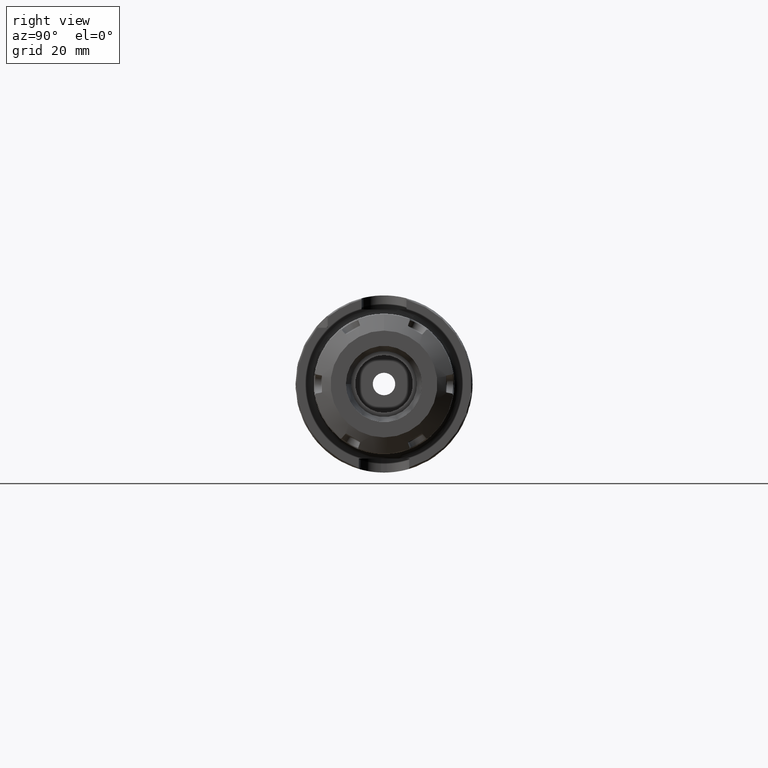
[diagram: clean part render]
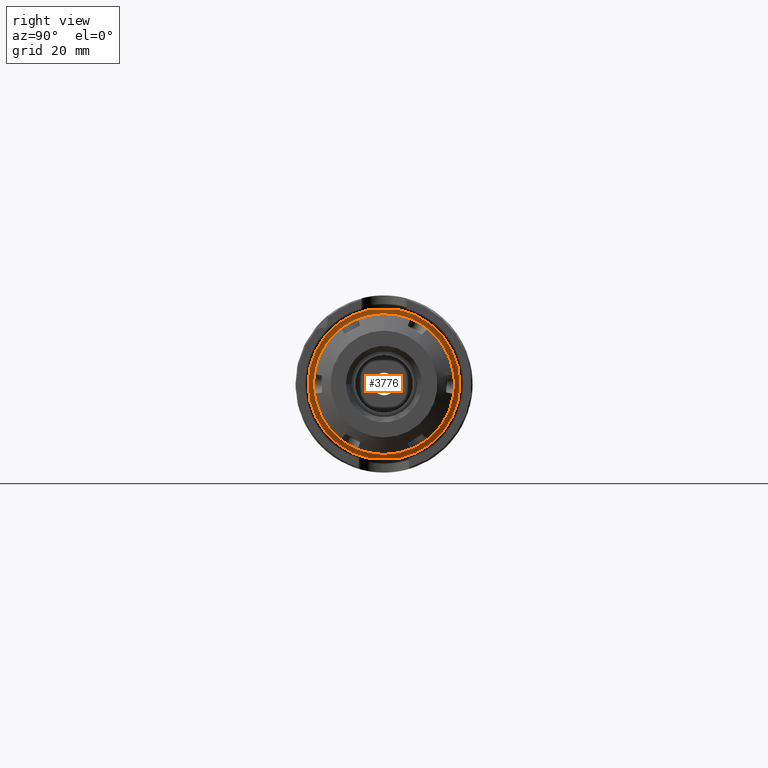
[diagram: same view with one face highlighted and labeled with its STEP entity id]
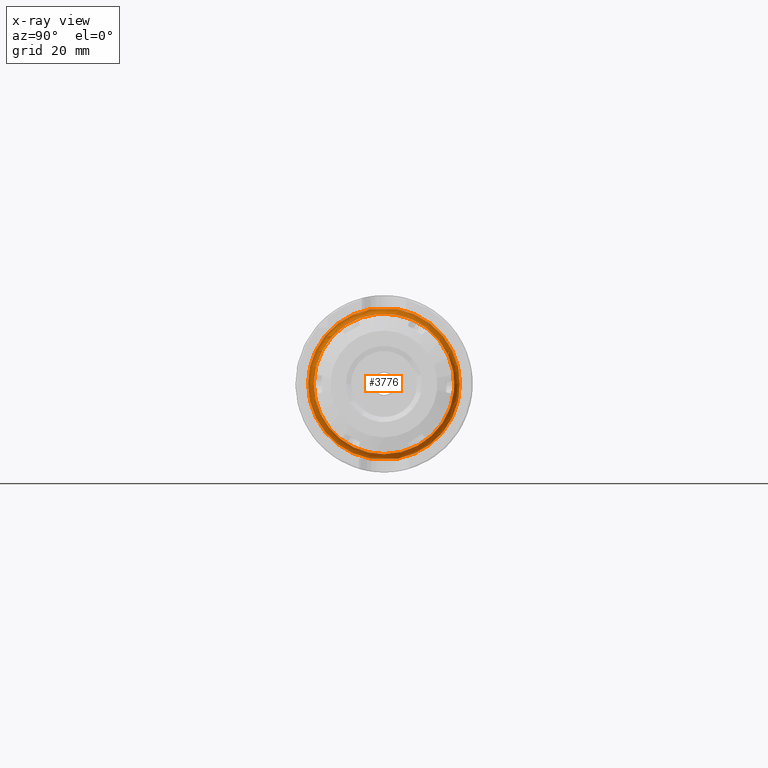
[diagram: x-ray of the same camera — body ghosted, the highlighted face saturated]
A machine part, right view. The second image highlights one B-rep face of the part: STEP entity #3776.
The next image is the same camera in x-ray: the body ghosted, the highlighted face saturated — about 5% of this face is hidden behind the body in this view.
In plain terms, the highlighted toroidal blend (fillet) surface has major radius 27 mm and minor (blend) radius 2 mm.
Its self-contained STEP definition (entity closure, byte-faithful):
#468=B_SPLINE_CURVE_WITH_KNOTS('',3,(#5695,#5696,#5697,#5698,#5699,#5700),
 .UNSPECIFIED.,.F.,.F.,(4,2,4),(2.35196351914715,2.69268202846742,2.83689651311882),
 .UNSPECIFIED.);
#469=B_SPLINE_CURVE_WITH_KNOTS('',3,(#5704,#5705,#5706,#5707,#5708,#5709,
#5710,#5711,#5712,#5713),.UNSPECIFIED.,.F.,.F.,(4,2,2,2,4),(1.86703052517549,
2.01124500982689,2.35196351914715,2.69268202846742,2.83689651311882),
 .UNSPECIFIED.);
#470=B_SPLINE_CURVE_WITH_KNOTS('',3,(#5716,#5717,#5718,#5719,#5720,#5721),
 .UNSPECIFIED.,.F.,.F.,(4,2,4),(1.86703052517549,2.01124500982689,2.35196351914715),
 .UNSPECIFIED.);
#591=TOROIDAL_SURFACE('',#4127,27.,2.);
#762=FACE_OUTER_BOUND('',#971,.T.);
#971=EDGE_LOOP('',(#2695,#2696,#2697,#2698,#2699,#2700,#2701,#2702,#2703));
#1581=CIRCLE('',#4123,25.);
#1582=CIRCLE('',#4124,25.);
#1584=CIRCLE('',#4128,2.);
#1585=CIRCLE('',#4129,27.);
#1586=CIRCLE('',#4130,27.);
#1793=VERTEX_POINT('',#5684);
#1794=VERTEX_POINT('',#5686);
#1795=VERTEX_POINT('',#5692);
#1796=VERTEX_POINT('',#5694);
#1797=VERTEX_POINT('',#5701);
#1798=VERTEX_POINT('',#5703);
#1799=VERTEX_POINT('',#5714);
#2140=EDGE_CURVE('',#1794,#1793,#1581,.T.);
#2141=EDGE_CURVE('',#1793,#1794,#1582,.T.);
#2143=EDGE_CURVE('',#1794,#1795,#1584,.T.);
#2144=EDGE_CURVE('',#1796,#1795,#468,.F.);
#2145=EDGE_CURVE('',#1796,#1797,#1585,.T.);
#2146=EDGE_CURVE('',#1798,#1797,#469,.F.);
#2147=EDGE_CURVE('',#1798,#1799,#1586,.T.);
#2148=EDGE_CURVE('',#1795,#1799,#470,.F.);
#2695=ORIENTED_EDGE('',*,*,#2141,.T.);
#2696=ORIENTED_EDGE('',*,*,#2143,.T.);
#2697=ORIENTED_EDGE('',*,*,#2144,.F.);
#2698=ORIENTED_EDGE('',*,*,#2145,.T.);
#2699=ORIENTED_EDGE('',*,*,#2146,.F.);
#2700=ORIENTED_EDGE('',*,*,#2147,.T.);
#2701=ORIENTED_EDGE('',*,*,#2148,.F.);
#2702=ORIENTED_EDGE('',*,*,#2143,.F.);
#2703=ORIENTED_EDGE('',*,*,#2140,.T.);
#3776=ADVANCED_FACE('',(#762),#591,.F.);
#4123=AXIS2_PLACEMENT_3D('',#5687,#4608,#4609);
#4124=AXIS2_PLACEMENT_3D('',#5688,#4610,#4611);
#4127=AXIS2_PLACEMENT_3D('',#5691,#4616,#4617);
#4128=AXIS2_PLACEMENT_3D('',#5693,#4618,#4619);
#4129=AXIS2_PLACEMENT_3D('',#5702,#4620,#4621);
#4130=AXIS2_PLACEMENT_3D('',#5715,#4622,#4623);
#4608=DIRECTION('center_axis',(-1.,0.,0.));
#4609=DIRECTION('ref_axis',(0.,-1.,-1.22464679914735E-16));
#4610=DIRECTION('center_axis',(-1.,0.,0.));
#4611=DIRECTION('ref_axis',(0.,-1.,-1.22464679914735E-16));
#4616=DIRECTION('center_axis',(-1.,0.,0.));
#4617=DIRECTION('ref_axis',(0.,0.,1.));
#4618=DIRECTION('center_axis',(0.,-1.,1.22464679914735E-16));
#4619=DIRECTION('ref_axis',(0.,-1.22464679914735E-16,-1.));
#4620=DIRECTION('center_axis',(1.,0.,0.));
#4621=DIRECTION('ref_axis',(0.,-1.,-1.22464679914735E-16));
#4622=DIRECTION('center_axis',(1.,0.,0.));
#4623=DIRECTION('ref_axis',(0.,-1.,-1.22464679914735E-16));
#5684=CARTESIAN_POINT('',(28.,-25.,-3.06161699786838E-15));
#5686=CARTESIAN_POINT('',(28.,-3.06161699786838E-15,-25.));
#5687=CARTESIAN_POINT('Origin',(28.,0.,0.));
#5688=CARTESIAN_POINT('Origin',(28.,0.,0.));
#5691=CARTESIAN_POINT('Origin',(28.,0.,0.));
#5692=CARTESIAN_POINT('',(26.0635083268963,-1.62265700887024E-15,-26.5));
#5693=CARTESIAN_POINT('Origin',(28.,-3.30654635769785E-15,-27.));
#5694=CARTESIAN_POINT('',(26.,5.17204021639429,-26.5));
#5695=CARTESIAN_POINT('Ctrl Pts',(26.0635083268963,1.38777878078145E-16,
-26.5));
#5696=CARTESIAN_POINT('Ctrl Pts',(26.0635083268963,1.13572836440089,-26.5));
#5697=CARTESIAN_POINT('Ctrl Pts',(26.0355357872666,2.49831530787329,-26.5));
#5698=CARTESIAN_POINT('Ctrl Pts',(26.007646638458,4.1145180118351,-26.5));
#5699=CARTESIAN_POINT('Ctrl Pts',(26.,4.69132526755629,-26.5));
#5700=CARTESIAN_POINT('Ctrl Pts',(26.,5.17204021639429,-26.5));
#5701=CARTESIAN_POINT('',(26.,5.17204021639429,26.5));
#5702=CARTESIAN_POINT('Origin',(26.,0.,0.));
#5703=CARTESIAN_POINT('',(26.,-5.17204021639429,26.5));
#5704=CARTESIAN_POINT('Ctrl Pts',(26.,5.17204021639429,26.5));
#5705=CARTESIAN_POINT('Ctrl Pts',(26.,4.69132526755629,26.5));
#5706=CARTESIAN_POINT('Ctrl Pts',(26.007646638458,4.1145180118351,26.5));
#5707=CARTESIAN_POINT('Ctrl Pts',(26.0355357872666,2.49831530787329,26.5));
#5708=CARTESIAN_POINT('Ctrl Pts',(26.0635083268963,1.13572836440089,26.5));
#5709=CARTESIAN_POINT('Ctrl Pts',(26.0635083268963,-1.13572836440089,26.5));
#5710=CARTESIAN_POINT('Ctrl Pts',(26.0355357872666,-2.49831530787329,26.5));
#5711=CARTESIAN_POINT('Ctrl Pts',(26.007646638458,-4.1145180118351,26.5));
#5712=CARTESIAN_POINT('Ctrl Pts',(26.,-4.69132526755629,26.5));
#5713=CARTESIAN_POINT('Ctrl Pts',(26.,-5.17204021639429,26.5));
#5714=CARTESIAN_POINT('',(26.,-5.17204021639429,-26.5));
#5715=CARTESIAN_POINT('Origin',(26.,0.,0.));
#5716=CARTESIAN_POINT('Ctrl Pts',(26.,-5.17204021639429,-26.5));
#5717=CARTESIAN_POINT('Ctrl Pts',(26.,-4.69132526755629,-26.5));
#5718=CARTESIAN_POINT('Ctrl Pts',(26.007646638458,-4.1145180118351,-26.5));
#5719=CARTESIAN_POINT('Ctrl Pts',(26.0355357872666,-2.49831530787329,-26.5));
#5720=CARTESIAN_POINT('Ctrl Pts',(26.0635083268963,-1.13572836440089,-26.5));
#5721=CARTESIAN_POINT('Ctrl Pts',(26.0635083268963,-2.77555756156289E-16,
-26.5));